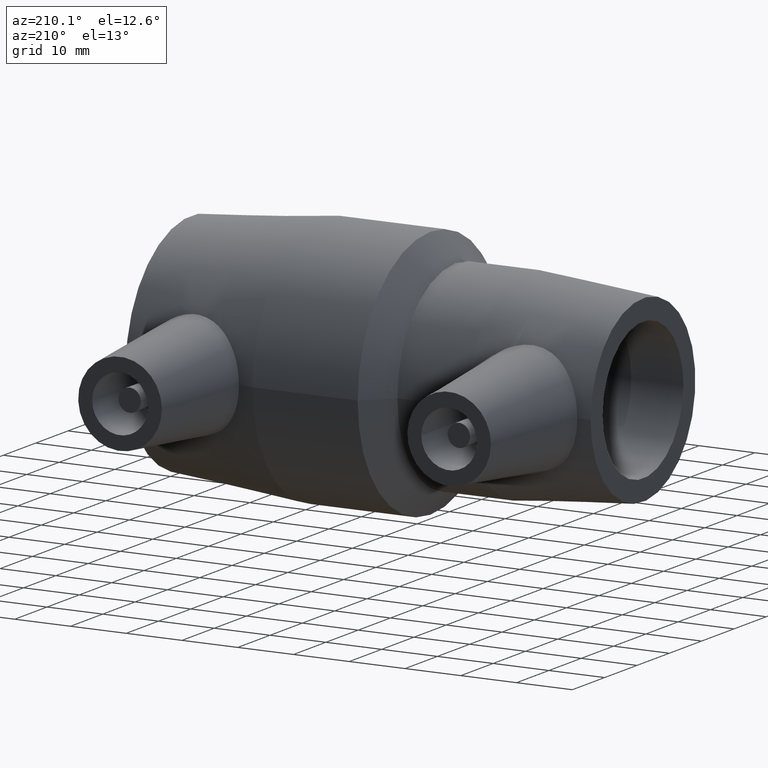
[diagram: clean part render]
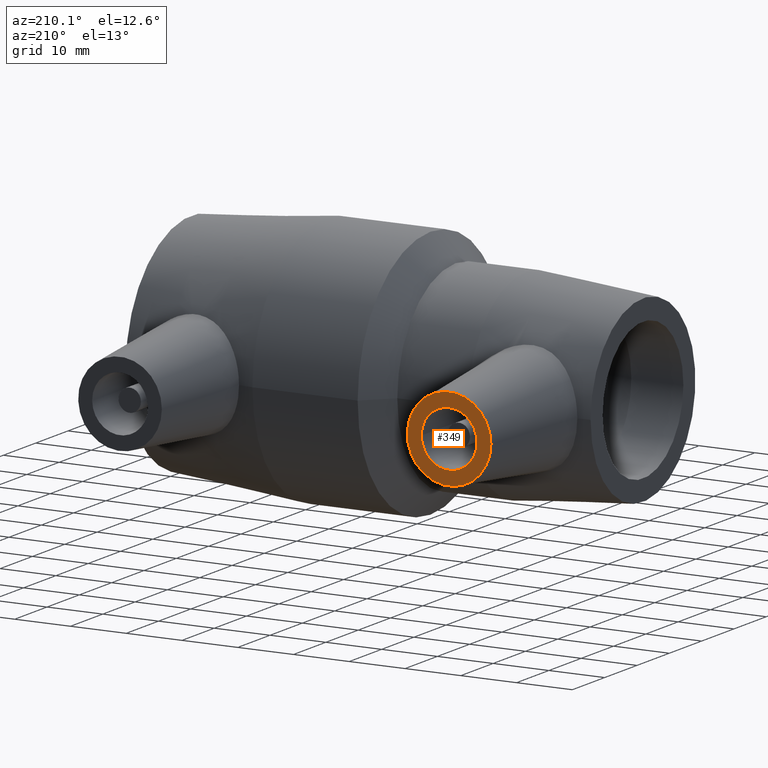
[diagram: same view with one face highlighted and labeled with its STEP entity id]
A machine part, auxiliary view. The second image highlights one B-rep face of the part: STEP entity #349.
In plain terms, the highlighted planar face has unit normal (0, 1, 0).
Its self-contained STEP definition (entity closure, byte-faithful):
#36=FACE_BOUND('',#120,.T.);
#79=FACE_OUTER_BOUND('',#119,.T.);
#119=EDGE_LOOP('',(#277));
#120=EDGE_LOOP('',(#278));
#171=CIRCLE('',#390,5.);
#172=CIRCLE('',#393,7.5);
#202=VERTEX_POINT('',#622);
#203=VERTEX_POINT('',#626);
#234=EDGE_CURVE('',#202,#202,#171,.T.);
#235=EDGE_CURVE('',#203,#203,#172,.T.);
#277=ORIENTED_EDGE('',*,*,#235,.F.);
#278=ORIENTED_EDGE('',*,*,#234,.T.);
#332=PLANE('',#392);
#349=ADVANCED_FACE('',(#79,#36),#332,.T.);
#390=AXIS2_PLACEMENT_3D('',#623,#471,#472);
#392=AXIS2_PLACEMENT_3D('',#625,#475,#476);
#393=AXIS2_PLACEMENT_3D('',#627,#477,#478);
#471=DIRECTION('center_axis',(0.,-1.,0.));
#472=DIRECTION('ref_axis',(-1.,0.,0.));
#475=DIRECTION('center_axis',(0.,1.,0.));
#476=DIRECTION('ref_axis',(0.,0.,1.));
#477=DIRECTION('center_axis',(0.,-1.,0.));
#478=DIRECTION('ref_axis',(1.,0.,0.));
#622=CARTESIAN_POINT('',(-23.35,39.,-6.12323399573677E-16));
#623=CARTESIAN_POINT('Origin',(-28.35,39.,0.));
#625=CARTESIAN_POINT('Origin',(-28.35,39.,1.2335811384724E-16));
#626=CARTESIAN_POINT('',(-35.85,39.,9.18485099360515E-16));
#627=CARTESIAN_POINT('Origin',(-28.35,39.,0.));